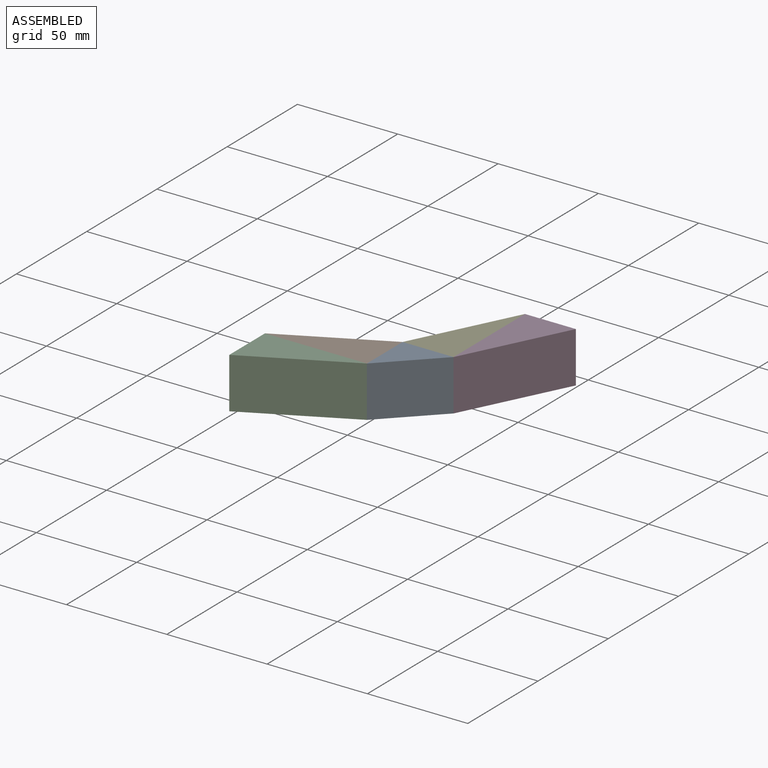
[diagram: assembled view]
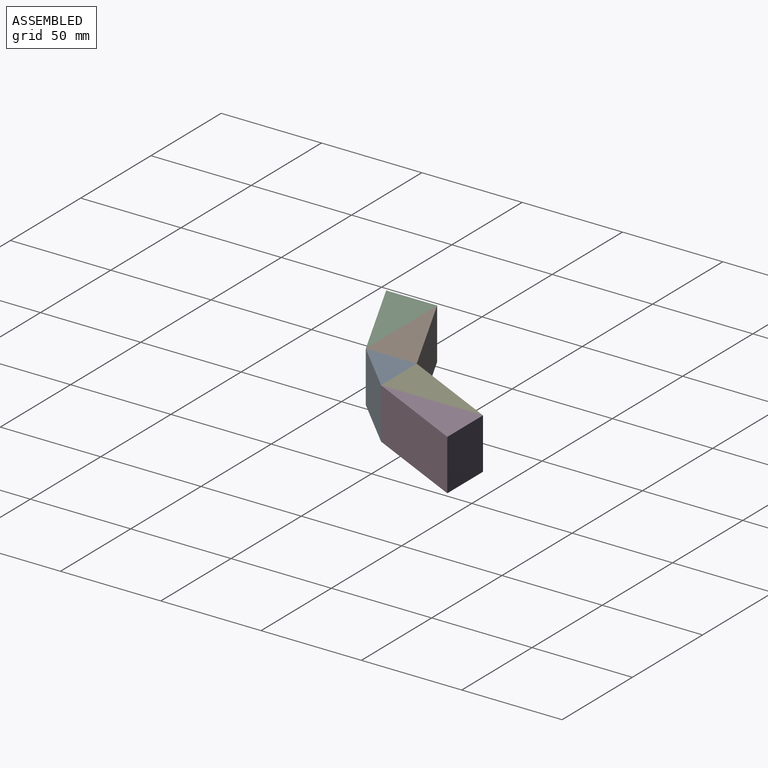
[diagram: assembled view, second angle]
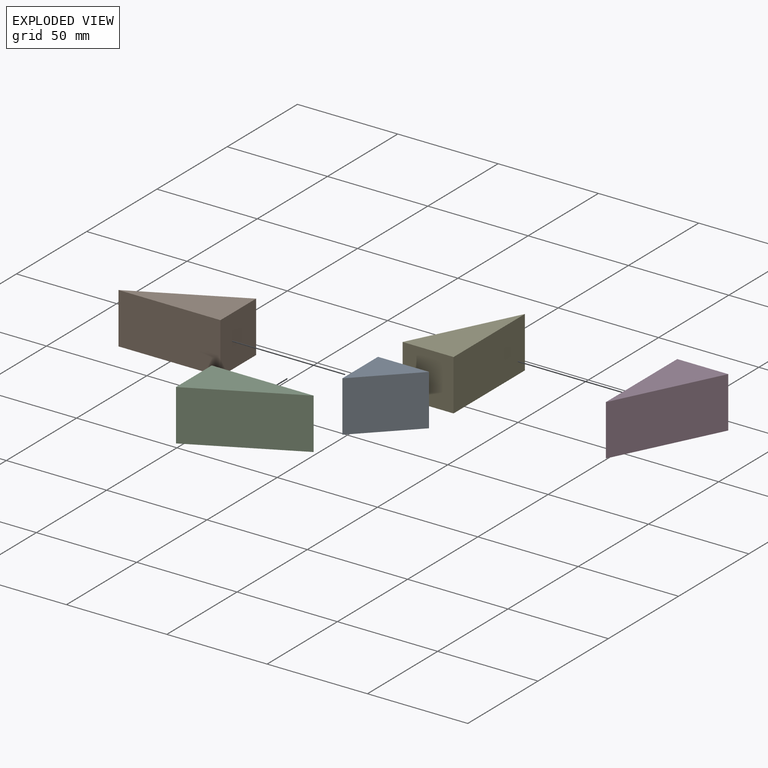
[diagram: exploded view]
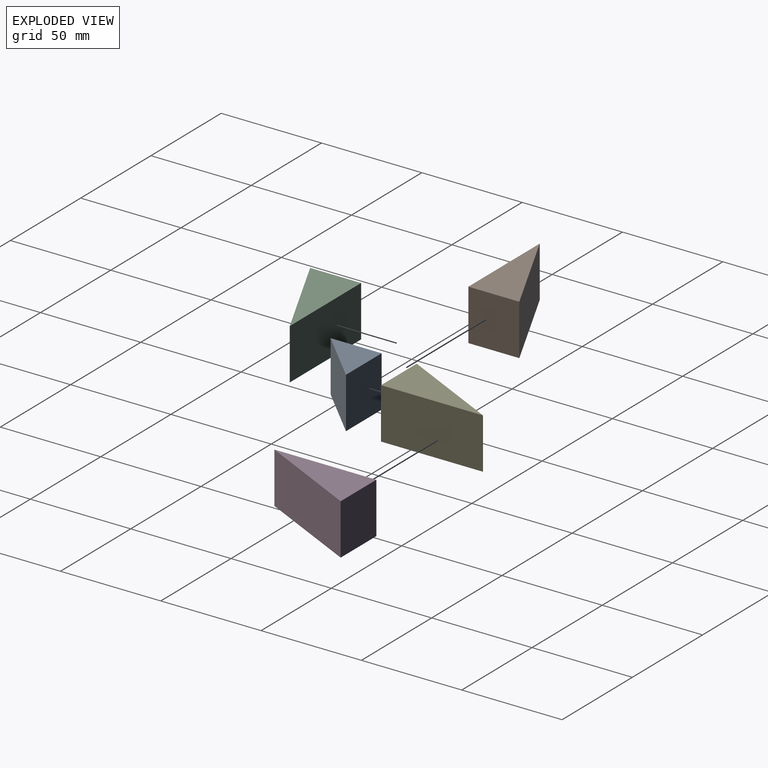
[diagram: exploded view, second angle]
ASSEMBLY  parts=5 mates=4
PART A: 5 faces, bbox 25.4x25.4x25.4 mm
  f0: plane 25.4x25.4mm, normal (1,0,0), area 645.2mm2, adj f1,f2,f3,f4
  f1: plane 25.4x25.4mm, normal (-0.71,0,0.71), area 912.4mm2, adj f0,f2,f3,f4
  f2: plane 25.4x25.4mm, normal (0,0,-1), area 645.2mm2, adj f0,f1,f3,f4
  f3: plane 25.4x25.4mm, normal (0,-1,0), area 322.6mm2, adj f0,f1,f2
  f4: plane 25.4x25.4mm, normal (0,1,0), area 322.6mm2, adj f0,f1,f2
PART B: 5 faces, bbox 50.8x25.4x25.4 mm
  f0: plane 50.8x25.4mm, normal (0.45,0.89,0), area 1442.6mm2, adj f1,f2,f3,f4
  f1: plane 25.4x25.4mm, normal (-1,0,0), area 645.2mm2, adj f0,f2,f3,f4
  f2: plane 50.8x25.4mm, normal (0,-1,0), area 1290.3mm2, adj f0,f1,f3,f4
  f3: plane 50.8x25.4mm, normal (0,0,1), area 645.2mm2, adj f0,f1,f2
  f4: plane 50.8x25.4mm, normal (0,0,-1), area 645.2mm2, adj f0,f1,f2
PART C: same geometry as B
PART D: same geometry as B
PART E: same geometry as B
PLACE A rot(axis=(0,-0.71,0.71),180deg) t=(50.8,38.1,-12.7)mm
PLACE B rot(axis=(0,-1,0),180deg) t=(50.8,12.7,12.7)mm
PLACE C rot(axis=(1,0,0),180deg) t=(0,12.7,12.7)mm
PLACE D rot(axis=(0,0,-1),90deg) t=(76.2,88.9,-12.7)mm
PLACE E rot(axis=(0,0,1),90deg) t=(76.2,38.1,-12.7)mm
MATE fastened E.f2 <-> D.f2  axis (1,0,0) through (76.2,63.5,0)mm
MATE fastened B.f2 <-> C.f2  axis (0,-1,0) through (25.4,12.7,0)mm
MATE fastened A.f0 <-> B.f1  axis (-1,0,0) through (50.8,25.4,0)mm
MATE fastened E.f1 <-> A.f2  axis (0,-1,0) through (63.5,38.1,0)mm
